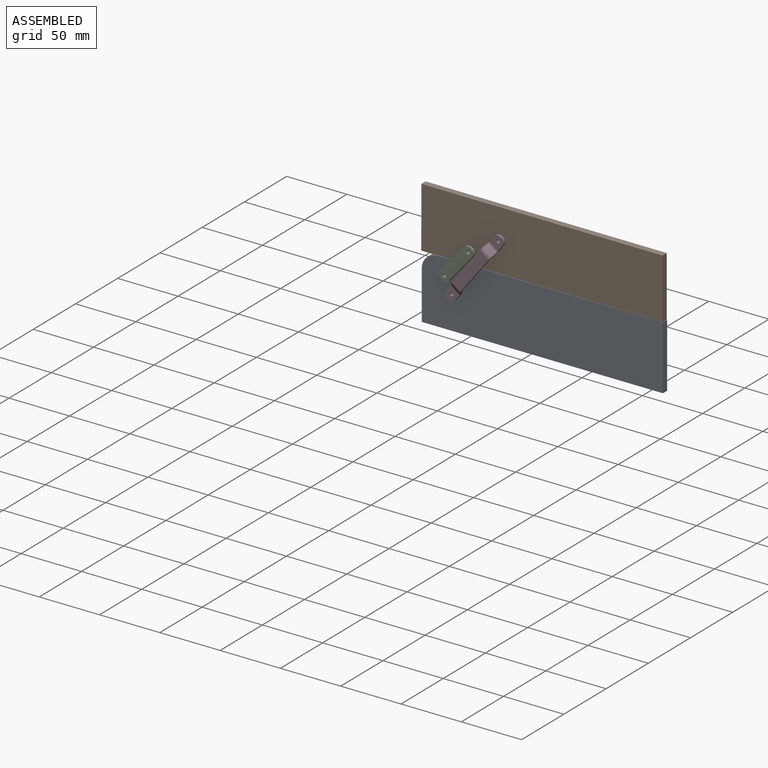
[diagram: assembled view]
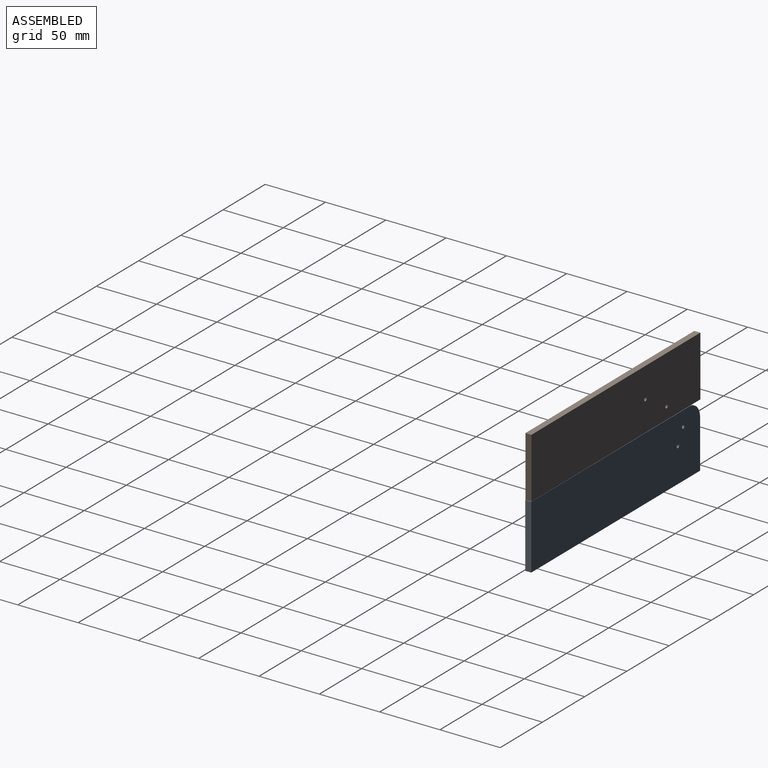
[diagram: assembled view, second angle]
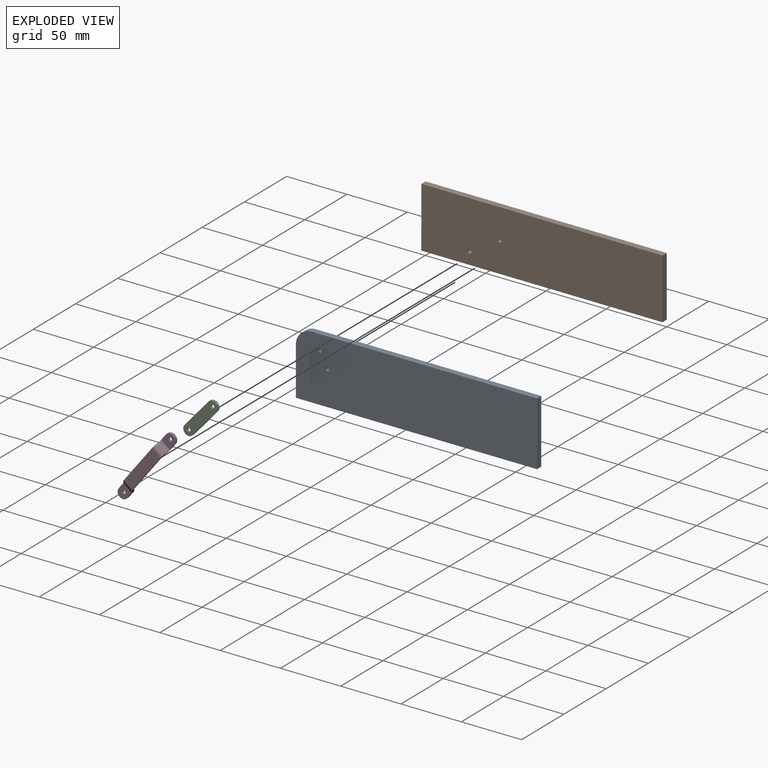
[diagram: exploded view]
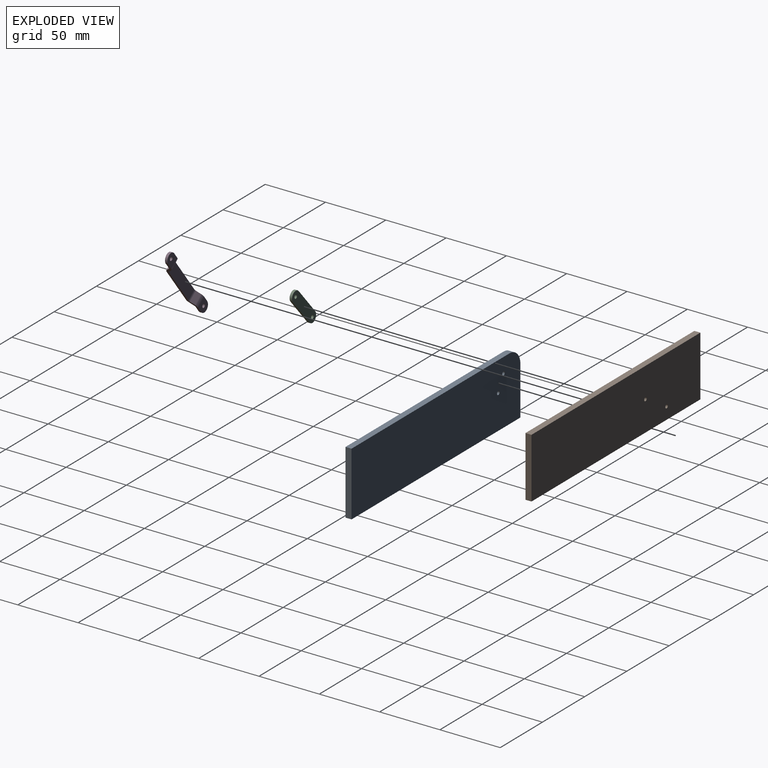
[diagram: exploded view, second angle]
ASSEMBLY  parts=4 mates=4
PART A: 9 faces, bbox 200x5x53 mm
  f0: plane 53x5mm, normal (1,0,0), area 265mm2, adj f1,f4,f5,f6
  f1: plane 187x5mm, normal (0,0,1), area 935mm2, adj f0,f2,f5,f6
  f2: cylinder r=13mm len=13mm, axis (0,1,0), area 102.1mm2, adj f1,f3,f5,f6
  f3: plane 40x5mm, normal (-1,0,0), area 200mm2, adj f2,f4,f5,f6
  f4: plane 200x5mm, normal (0,0,-1), area 1000mm2, adj f0,f3,f5,f6
  f5: plane 200x53mm, normal (0,-1,0), area 10549.6mm2, adj f0,f1,f2,f3,f4,f7,f8
  f6: plane 200x53mm, normal (0,1,0), area 10549.6mm2, adj f0,f1,f2,f3,f4,f7,f8
  f7: cylinder r=1.5mm len=5mm, axis (0,1,0), area 47.1mm2, adj f5,f6
  f8: cylinder r=1.5mm len=5mm, axis (0,1,0), area 47.1mm2, adj f5,f6
PART B: 8 faces, bbox 200x5x50 mm
  f0: plane 50x5mm, normal (-1,0,0), area 250mm2, adj f1,f3,f4,f5
  f1: plane 200x5mm, normal (0,0,-1), area 1000mm2, adj f0,f2,f4,f5
  f2: plane 50x5mm, normal (1,0,0), area 250mm2, adj f1,f3,f4,f5
  f3: plane 200x5mm, normal (0,0,1), area 1000mm2, adj f0,f2,f4,f5
  f4: plane 200x50mm, normal (0,-1,0), area 9985.9mm2, adj f0,f1,f2,f3,f6,f7
  f5: plane 200x50mm, normal (0,1,0), area 9985.9mm2, adj f0,f1,f2,f3,f6,f7
  f6: cylinder r=1.5mm len=5mm, axis (0,1,0), area 47.1mm2, adj f4,f5
  f7: cylinder r=1.5mm len=5mm, axis (0,1,0), area 47.1mm2, adj f4,f5
PART C: 8 faces, bbox 29x2x31.4 mm
  f0: plane 22.37x19.98mm, normal (-0.75,0,0.67), area 60mm2, adj f1,f3,f6,f7
  f1: cylinder r=4.5mm len=7.86mm, axis (0,1,0), area 28.3mm2, adj f0,f2,f6,f7
  f2: plane 22.37x19.98mm, normal (0.75,0,-0.67), area 60mm2, adj f1,f3,f6,f7
  f3: cylinder r=4.5mm len=7.86mm, axis (0,1,0), area 28.3mm2, adj f0,f2,f6,f7
  f4: cylinder r=1.5mm len=3mm, axis (0,1,0), area 18.8mm2, adj f6,f7
  f5: cylinder r=1.5mm len=3mm, axis (0,1,0), area 18.8mm2, adj f6,f7
  f6: plane 31.37x28.98mm, normal (0,-1,0), area 319.5mm2, adj f0,f1,f2,f3,f4,f5
  f7: plane 31.37x28.98mm, normal (0,1,0), area 319.5mm2, adj f0,f1,f2,f3,f4,f5
PART D: 40 faces, bbox 9x6.9x73 mm
  f0: plane 5.84x2mm, normal (-1,0,0), area 11.7mm2, adj f2,f3,f4,f35
  f1: plane 5.84x2mm, normal (1,0,0), area 11.7mm2, adj f2,f3,f4,f34
  f2: plane 10.34x9mm, normal (0,-1,0), area 77.3mm2, adj f0,f1,f4,f37,f39
  f3: plane 10.34x9mm, normal (0,1,0), area 77.3mm2, adj f0,f1,f4,f36,f39
  f4: cylinder r=4.5mm len=9mm, axis (0,1,0), area 28.3mm2, adj f0,f1,f2,f3
  f5: plane 4.61x4.61mm, normal (-1,0,0), area 9mm2, adj f7,f8,f31,f35
  f6: plane 4.61x4.61mm, normal (1,0,0), area 9mm2, adj f7,f8,f30,f34
  f7: plane 9x3.19mm, normal (0,-0.71,0.71), area 40.6mm2, adj f5,f6,f32,f37
  f8: plane 9x3.19mm, normal (0,0.71,-0.71), area 40.6mm2, adj f5,f6,f33,f36
  f9: plane 37.44x2mm, normal (-1,0,0), area 74.9mm2, adj f11,f12,f27,f31
  f10: plane 37.44x2mm, normal (1,0,0), area 74.9mm2, adj f11,f12,f26,f30
  f11: plane 37.44x9mm, normal (0,-1,0), area 337mm2, adj f9,f10,f28,f32
  f12: plane 37.44x9mm, normal (0,1,0), area 337mm2, adj f9,f10,f29,f33
  f13: plane 4.61x4.61mm, normal (-1,0,0), area 9mm2, adj f15,f16,f23,f27
  f14: plane 4.61x4.61mm, normal (1,0,0), area 9mm2, adj f15,f16,f22,f26
  f15: plane 9x3.19mm, normal (0,-0.71,-0.71), area 40.6mm2, adj f13,f14,f25,f28
  f16: plane 9x3.19mm, normal (0,0.71,0.71), area 40.6mm2, adj f13,f14,f24,f29
  f17: plane 5.84x2mm, normal (-1,0,0), area 11.7mm2, adj f19,f20,f21,f23
  f18: plane 5.84x2mm, normal (1,0,0), area 11.7mm2, adj f19,f20,f21,f22
  f19: plane 10.34x9mm, normal (0,-1,0), area 77.3mm2, adj f17,f18,f21,f25,f38
  f20: plane 10.34x9mm, normal (0,1,0), area 77.3mm2, adj f17,f18,f21,f24,f38
  f21: cylinder r=4.5mm len=9mm, axis (0,1,0), area 28.3mm2, adj f17,f18,f19,f20
  f22: plane 2.83x2.59mm, normal (1,0,0), area 4.7mm2, adj f14,f18,f24,f25
  f23: plane 2.83x2.59mm, normal (-1,0,0), area 4.7mm2, adj f13,f17,f24,f25
  f24: cylinder r=4mm len=9mm, axis (1,0,0), area 28.3mm2, adj f16,f20,f22,f23
  f25: cylinder r=2mm len=9mm, axis (1,0,0), area 14.1mm2, adj f15,f19,f22,f23
  f26: plane 2.83x2.59mm, normal (1,0,0), area 4.7mm2, adj f10,f14,f28,f29
  f27: plane 2.83x2.59mm, normal (-1,0,0), area 4.7mm2, adj f9,f13,f28,f29
  f28: cylinder r=4mm len=9mm, axis (1,0,0), area 28.3mm2, adj f11,f15,f26,f27
  f29: cylinder r=2mm len=9mm, axis (1,0,0), area 14.1mm2, adj f12,f16,f26,f27
  f30: plane 2.83x2.59mm, normal (1,0,0), area 4.7mm2, adj f6,f10,f32,f33
  f31: plane 2.83x2.59mm, normal (-1,0,0), area 4.7mm2, adj f5,f9,f32,f33
  f32: cylinder r=4mm len=9mm, axis (1,0,0), area 28.3mm2, adj f7,f11,f30,f31
  f33: cylinder r=2mm len=9mm, axis (1,0,0), area 14.1mm2, adj f8,f12,f30,f31
  f34: plane 2.83x2.59mm, normal (1,0,0), area 4.7mm2, adj f1,f6,f36,f37
  f35: plane 2.83x2.59mm, normal (-1,0,0), area 4.7mm2, adj f0,f5,f36,f37
  f36: cylinder r=4mm len=9mm, axis (1,0,0), area 28.3mm2, adj f3,f8,f34,f35
  f37: cylinder r=2mm len=9mm, axis (1,0,0), area 14.1mm2, adj f2,f7,f34,f35
  f38: cylinder r=1.5mm len=3mm, axis (0,-1,0), area 18.8mm2, adj f19,f20
  f39: cylinder r=1.5mm len=3mm, axis (0,-1,0), area 18.8mm2, adj f2,f3
PLACE A t=(-136.52,10.13,24.46)mm fixed
PLACE B rot(axis=(0,1,0),0.1deg) t=(-136.87,10.13,24.78)mm
PLACE C rot(axis=(0,-1,0),0.8deg) t=(-136.69,10.13,24.18)mm
PLACE D rot(axis=(0,1,0),37.6deg) t=(-93.65,137.01,28.82)mm
MATE revolute C.f1 <-> A.f8  axis (0,1,0) through (-116.53,5.13,12.09)mm
MATE revolute D.f4 <-> B.f7  axis (0,1,0) through (-71.86,5.13,49.71)mm
MATE revolute D.f38 <-> A.f7  axis (0,1,0) through (-110.32,5.13,-0.18)mm
MATE revolute C.f3 <-> B.f6  axis (0,1,0) through (-96.85,5.13,34.74)mm
